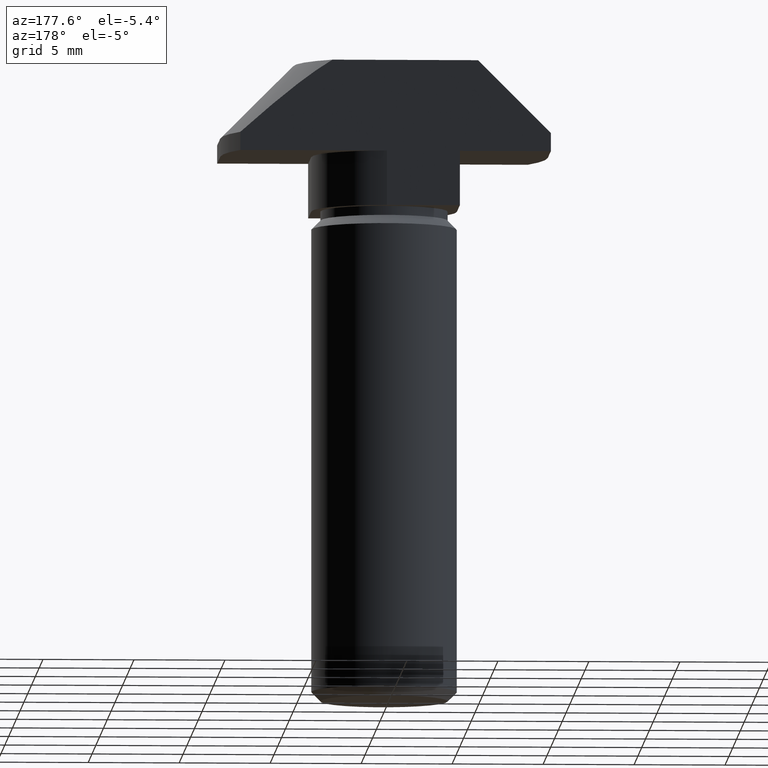
[diagram: clean part render]
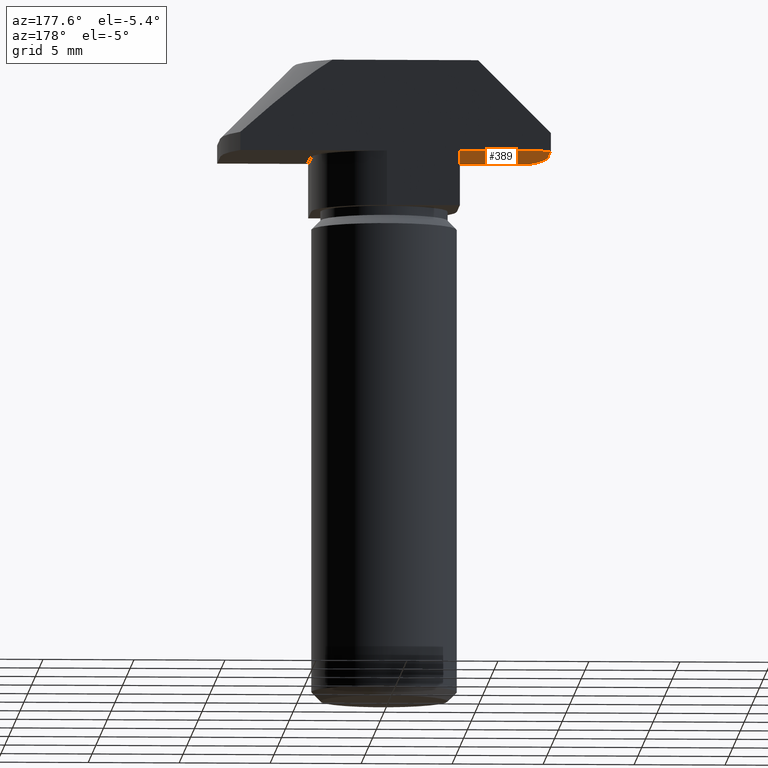
[diagram: same view with one face highlighted and labeled with its STEP entity id]
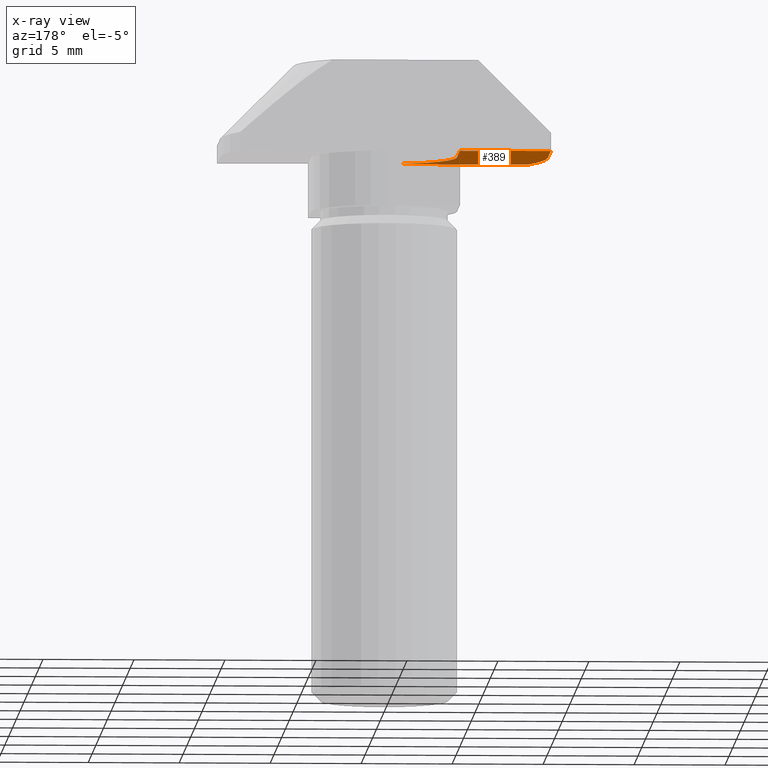
[diagram: x-ray of the same camera — body ghosted, the highlighted face saturated]
A machine part, auxiliary view. The second image highlights one B-rep face of the part: STEP entity #389.
The next image is the same camera in x-ray: the body ghosted, the highlighted face saturated — about 10% of this face is hidden behind the body in this view.
In plain terms, the highlighted planar face has unit normal (0, 0, -1).
Its self-contained STEP definition (entity closure, byte-faithful):
#22=PLANE('',#444);
#47=FACE_OUTER_BOUND('',#71,.T.);
#71=EDGE_LOOP('',(#305,#306,#307,#308,#309,#310));
#88=LINE('',#602,#126);
#100=LINE('',#634,#138);
#101=LINE('',#638,#139);
#102=LINE('',#639,#140);
#126=VECTOR('',#491,10.);
#138=VECTOR('',#521,10.);
#139=VECTOR('',#524,10.);
#140=VECTOR('',#525,10.);
#165=CIRCLE('',#437,4.00000000000001);
#169=CIRCLE('',#445,9.);
#180=VERTEX_POINT('',#600);
#181=VERTEX_POINT('',#601);
#184=VERTEX_POINT('',#609);
#192=VERTEX_POINT('',#633);
#193=VERTEX_POINT('',#635);
#194=VERTEX_POINT('',#637);
#219=EDGE_CURVE('',#180,#181,#88,.T.);
#223=EDGE_CURVE('',#181,#184,#165,.T.);
#235=EDGE_CURVE('',#192,#184,#100,.T.);
#236=EDGE_CURVE('',#192,#193,#169,.T.);
#237=EDGE_CURVE('',#193,#194,#101,.T.);
#238=EDGE_CURVE('',#180,#194,#102,.T.);
#305=ORIENTED_EDGE('',*,*,#223,.T.);
#306=ORIENTED_EDGE('',*,*,#235,.F.);
#307=ORIENTED_EDGE('',*,*,#236,.T.);
#308=ORIENTED_EDGE('',*,*,#237,.T.);
#309=ORIENTED_EDGE('',*,*,#238,.F.);
#310=ORIENTED_EDGE('',*,*,#219,.T.);
#389=ADVANCED_FACE('',(#47),#22,.T.);
#437=AXIS2_PLACEMENT_3D('',#610,#497,#498);
#444=AXIS2_PLACEMENT_3D('',#632,#519,#520);
#445=AXIS2_PLACEMENT_3D('',#636,#522,#523);
#491=DIRECTION('',(0.,-1.,0.));
#497=DIRECTION('center_axis',(0.,0.,1.));
#498=DIRECTION('ref_axis',(2.7755575615629E-16,1.,0.));
#519=DIRECTION('center_axis',(0.,0.,-1.));
#520=DIRECTION('ref_axis',(-1.,0.,0.));
#521=DIRECTION('',(1.,0.,0.));
#522=DIRECTION('center_axis',(0.,0.,-1.));
#523=DIRECTION('ref_axis',(-1.,0.,0.));
#524=DIRECTION('',(0.,1.,0.));
#525=DIRECTION('',(-1.,0.,0.));
#600=CARTESIAN_POINT('',(-3.99999999999999,3.99999999999998,-5.));
#601=CARTESIAN_POINT('',(-3.99999999999999,-1.4432899320127E-14,-5.));
#602=CARTESIAN_POINT('',(-3.99999999999999,-7.21644966006352E-15,-5.));
#609=CARTESIAN_POINT('',(0.,-4.00000000000001,-5.));
#610=CARTESIAN_POINT('Origin',(1.11022302462516E-15,-1.33226762955019E-14,
-5.));
#632=CARTESIAN_POINT('Origin',(9.,0.,-5.));
#633=CARTESIAN_POINT('',(-8.06225774829855,-4.,-5.));
#634=CARTESIAN_POINT('',(-9.,-4.,-5.));
#635=CARTESIAN_POINT('',(-9.,0.,-5.));
#636=CARTESIAN_POINT('Origin',(0.,0.,-5.));
#637=CARTESIAN_POINT('',(-9.,4.,-5.));
#638=CARTESIAN_POINT('',(-9.,0.,-5.));
#639=CARTESIAN_POINT('',(-9.,4.,-5.));